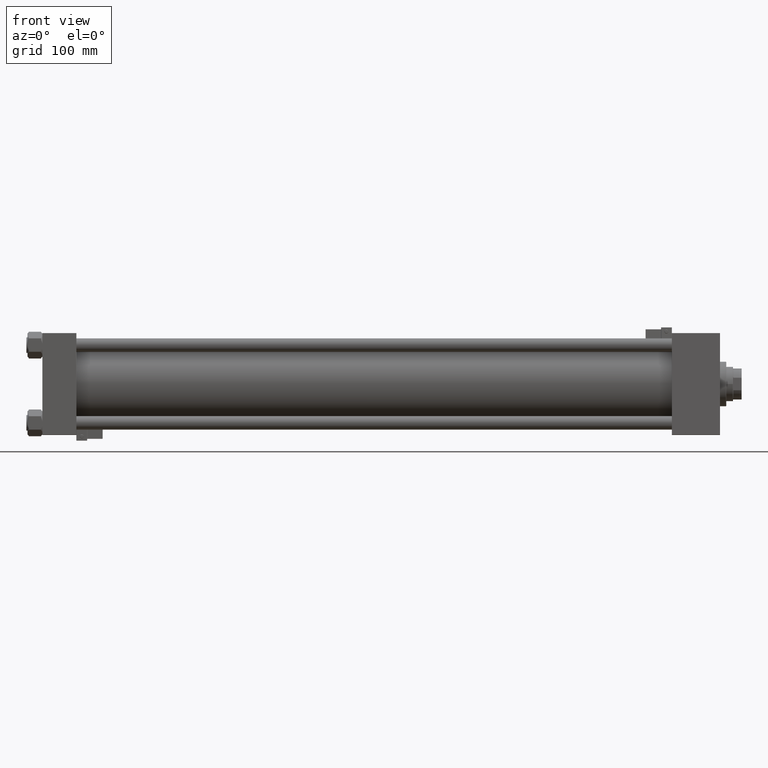
[diagram: clean part render]
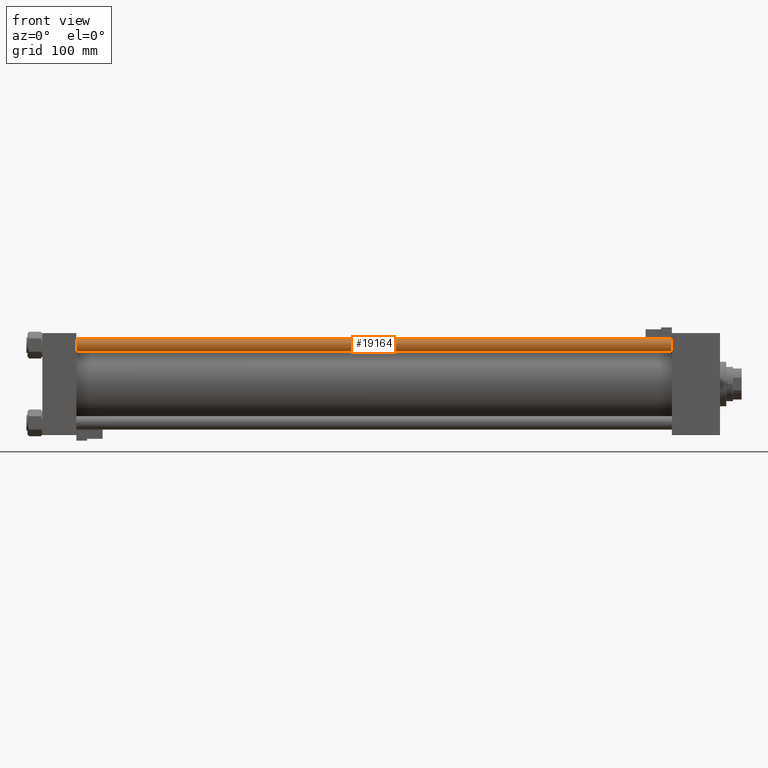
[diagram: same view with one face highlighted and labeled with its STEP entity id]
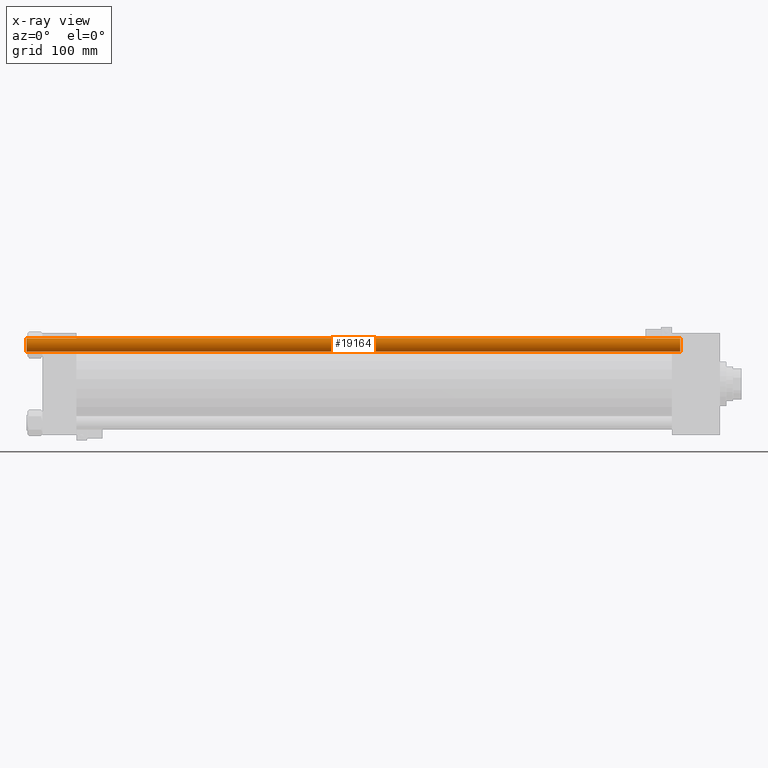
[diagram: x-ray of the same camera — body ghosted, the highlighted face saturated]
A machine part, front view. The second image highlights one B-rep face of the part: STEP entity #19164.
The next image is the same camera in x-ray: the body ghosted, the highlighted face saturated — about 0% of this face is hidden behind the body in this view.
In plain terms, the highlighted cylindrical surface (edge-blend (fillet) strip) has radius 11 mm, axis along (1, 0, -0).
Its self-contained STEP definition (entity closure, byte-faithful):
#658 = DIRECTION ( 'NONE',  ( -0.000000000000000000, -0.000000000000000000, -1.000000000000000000 ) ) ;
#1072 = VECTOR ( 'NONE', #658, 1000.000000000000000 ) ;
#1361 = VERTEX_POINT ( 'NONE', #10932 ) ;
#3089 = VERTEX_POINT ( 'NONE', #40767 ) ;
#3395 = ORIENTED_EDGE ( 'NONE', *, *, #32464, .T. ) ;
#4142 = CARTESIAN_POINT ( 'NONE',  ( -11.00000000000000000, 0.000000000000000000, 1059.000000000000000 ) ) ;
#4160 = CARTESIAN_POINT ( 'NONE',  ( 0.000000000000000000, 0.000000000000000000, 1059.000000000000000 ) ) ;
#6276 = VERTEX_POINT ( 'NONE', #29892 ) ;
#7747 = CARTESIAN_POINT ( 'NONE',  ( 0.000000000000000000, 0.000000000000000000, 0.4999999999999449329 ) ) ;
#10673 = EDGE_CURVE ( 'NONE', #6276, #24404, #14053, .T. ) ;
#10812 = CARTESIAN_POINT ( 'NONE',  ( 11.00000000000000000, 1.347111479062088405E-15, 1059.000000000000000 ) ) ;
#10932 = CARTESIAN_POINT ( 'NONE',  ( 11.00000000000000000, 1.347111479062088405E-15, 1058.500000000000227 ) ) ;
#11258 = DIRECTION ( 'NONE',  ( 1.000000000000000000, 0.000000000000000000, 0.000000000000000000 ) ) ;
#11509 = AXIS2_PLACEMENT_3D ( 'NONE', #7747, #32373, #11258 ) ;
#12464 = DIRECTION ( 'NONE',  ( -1.000000000000000000, 0.000000000000000000, 0.000000000000000000 ) ) ;
#14053 = CIRCLE ( 'NONE', #11509, 11.00000000000000000 ) ;
#15620 = DIRECTION ( 'NONE',  ( -0.000000000000000000, -0.000000000000000000, -1.000000000000000000 ) ) ;
#19164 = ADVANCED_FACE ( 'NONE', ( #40322 ), #45385, .T. ) ;
#20375 = EDGE_CURVE ( 'NONE', #3089, #24404, #32790, .T. ) ;
#22189 = EDGE_CURVE ( 'NONE', #1361, #6276, #52297, .T. ) ;
#23159 = DIRECTION ( 'NONE',  ( 1.000000000000000000, 0.000000000000000000, 0.000000000000000000 ) ) ;
#24404 = VERTEX_POINT ( 'NONE', #37749 ) ;
#27020 = CIRCLE ( 'NONE', #47546, 11.00000000000000000 ) ;
#29530 = ORIENTED_EDGE ( 'NONE', *, *, #22189, .T. ) ;
#29892 = CARTESIAN_POINT ( 'NONE',  ( 11.00000000000000000, 1.347111479062088405E-15, 0.4999999999999449329 ) ) ;
#32373 = DIRECTION ( 'NONE',  ( -0.000000000000000000, -0.000000000000000000, 1.000000000000000000 ) ) ;
#32464 = EDGE_CURVE ( 'NONE', #3089, #1361, #27020, .T. ) ;
#32790 = LINE ( 'NONE', #4142, #1072 ) ;
#36714 = ORIENTED_EDGE ( 'NONE', *, *, #20375, .F. ) ;
#36820 = DIRECTION ( 'NONE',  ( -0.000000000000000000, -0.000000000000000000, -1.000000000000000000 ) ) ;
#37749 = CARTESIAN_POINT ( 'NONE',  ( -11.00000000000000000, 0.000000000000000000, 0.4999999999999449329 ) ) ;
#39216 = CARTESIAN_POINT ( 'NONE',  ( 0.000000000000000000, 0.000000000000000000, 1058.500000000000227 ) ) ;
#40322 = FACE_OUTER_BOUND ( 'NONE', #47687, .T. ) ;
#40767 = CARTESIAN_POINT ( 'NONE',  ( -11.00000000000000000, 0.000000000000000000, 1058.500000000000227 ) ) ;
#43224 = ORIENTED_EDGE ( 'NONE', *, *, #10673, .T. ) ;
#43889 = VECTOR ( 'NONE', #15620, 1000.000000000000000 ) ;
#45385 = CYLINDRICAL_SURFACE ( 'NONE', #47209, 11.00000000000000000 ) ;
#47209 = AXIS2_PLACEMENT_3D ( 'NONE', #4160, #36820, #12464 ) ;
#47546 = AXIS2_PLACEMENT_3D ( 'NONE', #39216, #48061, #23159 ) ;
#47687 = EDGE_LOOP ( 'NONE', ( #3395, #29530, #43224, #36714 ) ) ;
#48061 = DIRECTION ( 'NONE',  ( 0.000000000000000000, 0.000000000000000000, -1.000000000000000000 ) ) ;
#52297 = LINE ( 'NONE', #10812, #43889 ) ;